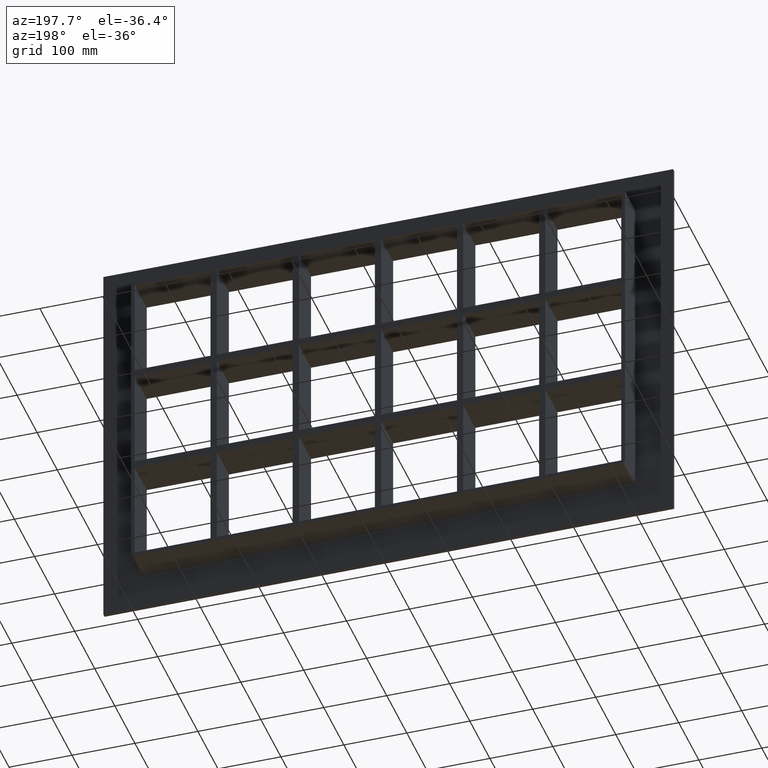
[diagram: clean part render]
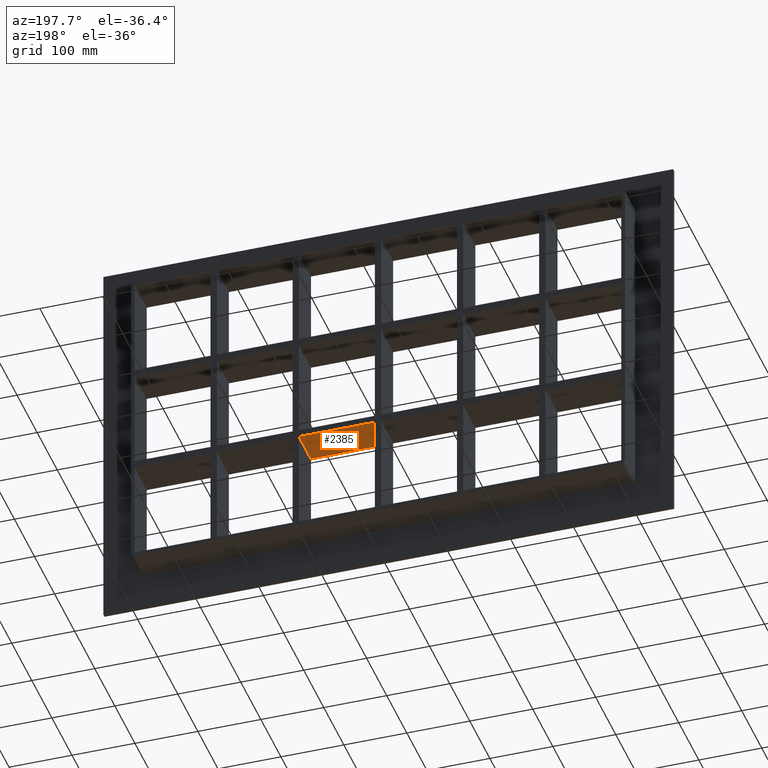
[diagram: same view with one face highlighted and labeled with its STEP entity id]
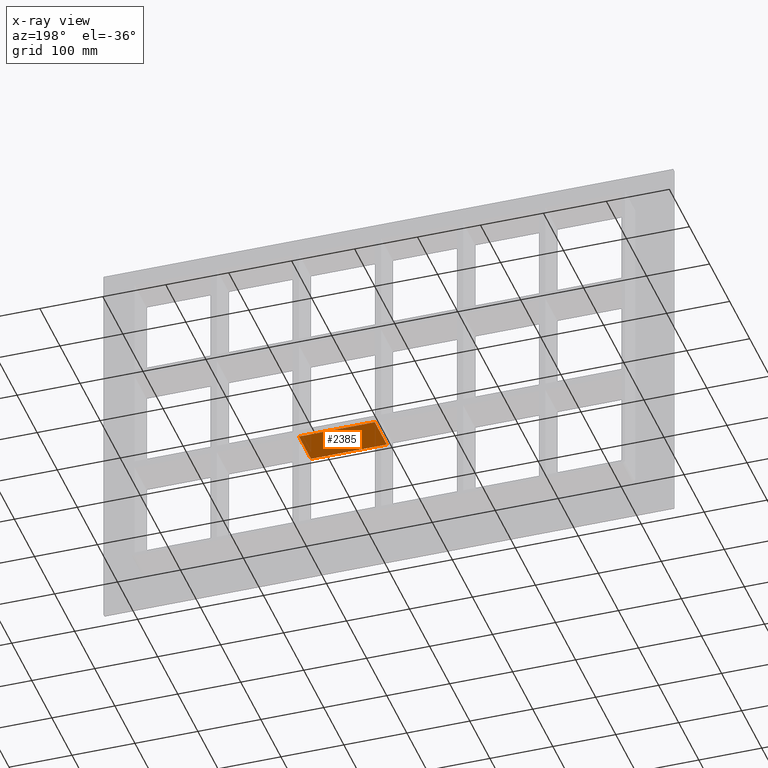
[diagram: x-ray of the same camera — body ghosted, the highlighted face saturated]
A machine part, auxiliary view. The second image highlights one B-rep face of the part: STEP entity #2385.
The next image is the same camera in x-ray: the body ghosted, the highlighted face saturated — about 0% of this face is hidden behind the body in this view.
In plain terms, the highlighted planar face has unit normal (0, 0, -1).
Its self-contained STEP definition (entity closure, byte-faithful):
#1352=CARTESIAN_POINT('',(125.49999999999868,57.0,-91.750000000009322));
#1353=VERTEX_POINT('',#1352);
#1360=CARTESIAN_POINT('',(4.999999999996376,57.0,-91.750000000009351));
#1361=VERTEX_POINT('',#1360);
#1362=CARTESIAN_POINT('',(125.49999999999869,57.0,-91.750000000009308));
#1363=DIRECTION('',(-1.0,0.0,0.0));
#1364=VECTOR('',#1363,120.50000000000233);
#1365=LINE('',#1362,#1364);
#1366=EDGE_CURVE('',#1353,#1361,#1365,.T.);
#1603=CARTESIAN_POINT('',(125.49999999999868,-3.0,-91.750000000009322));
#1604=VERTEX_POINT('',#1603);
#1605=CARTESIAN_POINT('',(125.49999999999866,57.0,-91.750000000009322));
#1606=DIRECTION('',(0.0,-1.0,0.0));
#1607=VECTOR('',#1606,60.0);
#1608=LINE('',#1605,#1607);
#1609=EDGE_CURVE('',#1353,#1604,#1608,.T.);
#1768=CARTESIAN_POINT('',(4.999999999996376,-3.0,-91.750000000009351));
#1769=VERTEX_POINT('',#1768);
#1770=CARTESIAN_POINT('',(4.999999999996376,-3.0,-91.750000000009351));
#1771=DIRECTION('',(0.0,1.0,0.0));
#1772=VECTOR('',#1771,60.0);
#1773=LINE('',#1770,#1772);
#1774=EDGE_CURVE('',#1769,#1361,#1773,.T.);
#2237=CARTESIAN_POINT('',(125.49999999999869,-3.0,-91.750000000009308));
#2238=DIRECTION('',(-1.0,0.0,0.0));
#2239=VECTOR('',#2238,120.50000000000233);
#2240=LINE('',#2237,#2239);
#2241=EDGE_CURVE('',#1604,#1769,#2240,.T.);
#2374=CARTESIAN_POINT('',(386.49999999999636,-3.0,-91.750000000009223));
#2375=DIRECTION('',(0.0,0.0,-1.0));
#2376=DIRECTION('',(-1.0,0.0,0.0));
#2377=AXIS2_PLACEMENT_3D('',#2374,#2375,#2376);
#2378=PLANE('',#2377);
#2379=ORIENTED_EDGE('',*,*,#1609,.T.);
#2380=ORIENTED_EDGE('',*,*,#2241,.T.);
#2381=ORIENTED_EDGE('',*,*,#1774,.T.);
#2382=ORIENTED_EDGE('',*,*,#1366,.F.);
#2383=EDGE_LOOP('',(#2379,#2380,#2381,#2382));
#2384=FACE_OUTER_BOUND('',#2383,.T.);
#2385=ADVANCED_FACE('',(#2384),#2378,.T.);